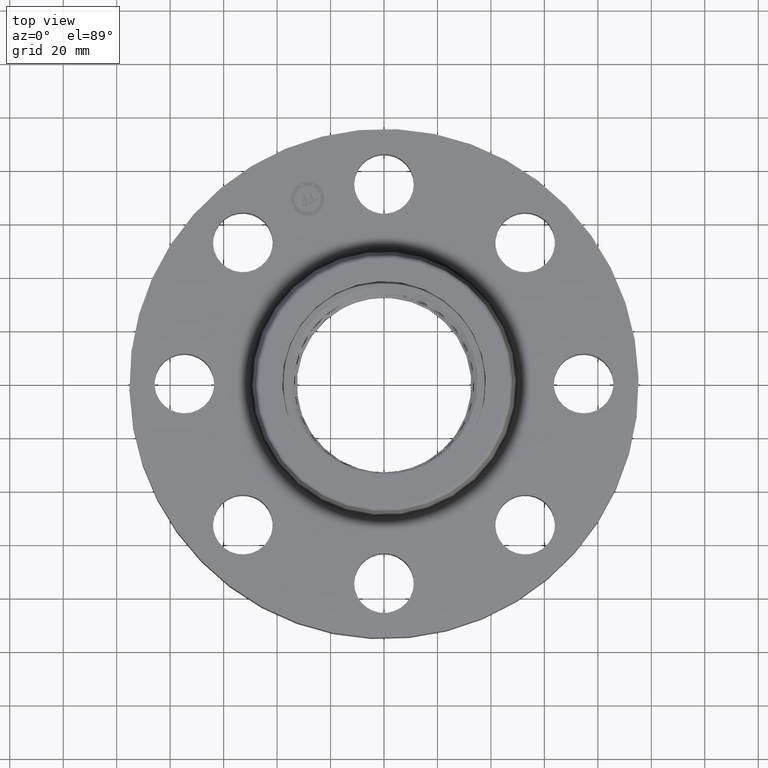
[diagram: clean part render]
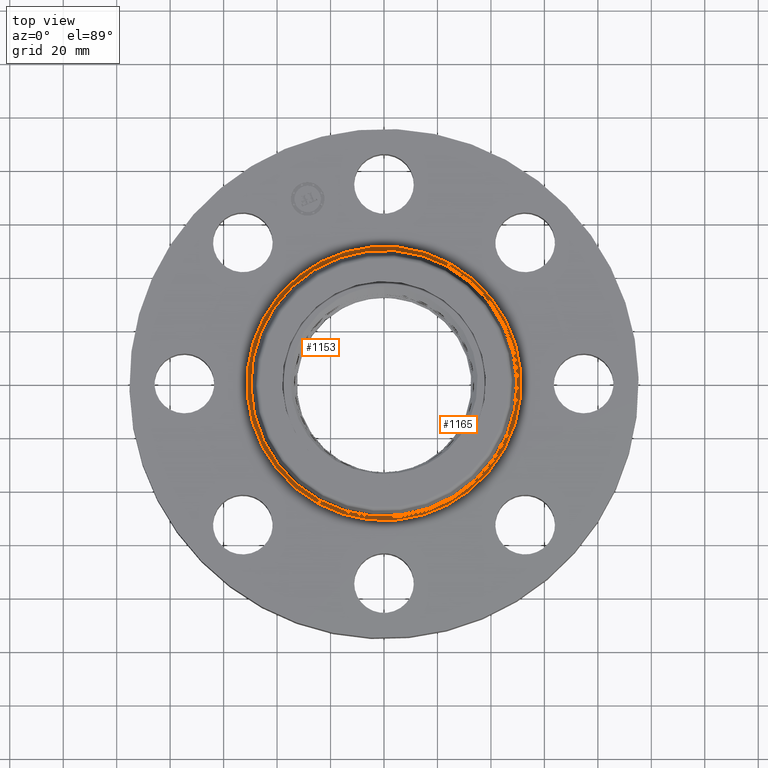
[diagram: same view with one multi-face feature highlighted, each face labeled with its STEP entity id]
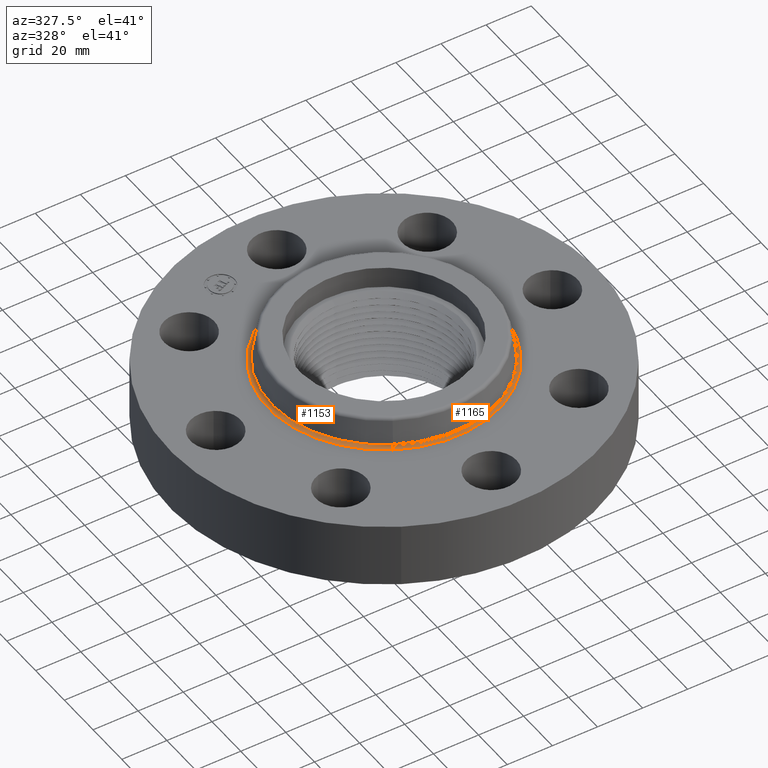
[diagram: same view with one multi-face feature highlighted, each face labeled with its STEP entity id]
A machine part, top view. The highlighted faces form ONE feature: a constant-radius fillet chain: 2 tangent blend faces with common blend radius 1.524 mm. The faces share edges in the B-rep.
A second angle (auxiliary view) of the same feature is appended — it is thin or edge-on in the first view.
Their STEP definitions:
[1] entity #1153 (Torus):
#1087=AXIS2_PLACEMENT_3D('Circle Axis2P3D',#1085,#1086,$) ;
#1126=AXIS2_PLACEMENT_3D('Torus Axis2P3D',#1123,#1124,#1125) ;
#1130=AXIS2_PLACEMENT_3D('Circle Axis2P3D',#1128,#1129,$) ;
#1139=AXIS2_PLACEMENT_3D('Circle Axis2P3D',#1137,#1138,$) ;
#1144=AXIS2_PLACEMENT_3D('Circle Axis2P3D',#1142,#1143,$) ;
#1085=CARTESIAN_POINT('Axis2P3D Location',(0.,0.,1.16958110934)) ;
#1089=CARTESIAN_POINT('Vertex',(-0.940276939367,-1.72116539252,1.16958110934)) ;
#1091=CARTESIAN_POINT('Vertex',(0.940276939367,1.72116539252,1.16958110934)) ;
#1123=CARTESIAN_POINT('Axis2P3D Location',(0.,0.,1.18)) ;
#1128=CARTESIAN_POINT('Axis2P3D Location',(0.,0.,1.12)) ;
#1132=CARTESIAN_POINT('Vertex',(-0.968605458611,-1.77302039917,1.12)) ;
#1134=CARTESIAN_POINT('Vertex',(0.968605458611,1.77302039917,1.12)) ;
#1137=CARTESIAN_POINT('Axis2P3D Location',(-0.968605458611,-1.77302039917,1.18)) ;
#1142=CARTESIAN_POINT('Axis2P3D Location',(0.968605458611,1.77302039917,1.18)) ;
#1086=DIRECTION('Axis2P3D Direction',(0.,0.,-0.0393700787402)) ;
#1124=DIRECTION('Axis2P3D Direction',(0.,0.,-0.0393700787402)) ;
#1125=DIRECTION('Axis2P3D XDirection',(0.0188750212049,0.0345504945626,0.)) ;
#1129=DIRECTION('Axis2P3D Direction',(0.,0.,-0.0393700787402)) ;
#1138=DIRECTION('Axis2P3D Direction',(0.0345504945626,-0.0188750212049,0.)) ;
#1143=DIRECTION('Axis2P3D Direction',(-0.0345504945626,0.0188750212049,0.)) ;
#1148=ORIENTED_EDGE('',*,*,#1136,.F.) ;
#1149=ORIENTED_EDGE('',*,*,#1141,.T.) ;
#1150=ORIENTED_EDGE('',*,*,#1093,.T.) ;
#1151=ORIENTED_EDGE('',*,*,#1146,.F.) ;
#1153=ADVANCED_FACE('PartBody',(#1152),#1127,.F.) ;
#1088=CIRCLE('generated circle',#1087,1.9612575127) ;
#1131=CIRCLE('generated circle',#1130,2.02034597788) ;
#1140=CIRCLE('generated circle',#1139,0.0600000000002) ;
#1145=CIRCLE('generated circle',#1144,0.0600000000002) ;
#1127=TOROIDAL_SURFACE('homeo Torus',#1126,2.02034597788,0.0600000000002) ;
#1093=EDGE_CURVE('',#1090,#1092,#1088,.T.) ;
#1136=EDGE_CURVE('',#1133,#1135,#1131,.T.) ;
#1141=EDGE_CURVE('',#1133,#1090,#1140,.T.) ;
#1146=EDGE_CURVE('',#1135,#1092,#1145,.T.) ;
#1147=EDGE_LOOP('',(#1148,#1149,#1150,#1151)) ;
#1152=FACE_OUTER_BOUND('',#1147,.T.) ;
#1090=VERTEX_POINT('',#1089) ;
#1092=VERTEX_POINT('',#1091) ;
#1133=VERTEX_POINT('',#1132) ;
#1135=VERTEX_POINT('',#1134) ;
[2] entity #1165 (Torus):
#1113=AXIS2_PLACEMENT_3D('Circle Axis2P3D',#1111,#1112,$) ;
#1126=AXIS2_PLACEMENT_3D('Torus Axis2P3D',#1123,#1124,#1125) ;
#1139=AXIS2_PLACEMENT_3D('Circle Axis2P3D',#1137,#1138,$) ;
#1144=AXIS2_PLACEMENT_3D('Circle Axis2P3D',#1142,#1143,$) ;
#1156=AXIS2_PLACEMENT_3D('Circle Axis2P3D',#1154,#1155,$) ;
#1089=CARTESIAN_POINT('Vertex',(-0.940276939367,-1.72116539252,1.16958110934)) ;
#1091=CARTESIAN_POINT('Vertex',(0.940276939367,1.72116539252,1.16958110934)) ;
#1111=CARTESIAN_POINT('Axis2P3D Location',(0.,0.,1.16958110934)) ;
#1123=CARTESIAN_POINT('Axis2P3D Location',(0.,0.,1.18)) ;
#1132=CARTESIAN_POINT('Vertex',(-0.968605458611,-1.77302039917,1.12)) ;
#1134=CARTESIAN_POINT('Vertex',(0.968605458611,1.77302039917,1.12)) ;
#1137=CARTESIAN_POINT('Axis2P3D Location',(-0.968605458611,-1.77302039917,1.18)) ;
#1142=CARTESIAN_POINT('Axis2P3D Location',(0.968605458611,1.77302039917,1.18)) ;
#1154=CARTESIAN_POINT('Axis2P3D Location',(0.,0.,1.12)) ;
#1112=DIRECTION('Axis2P3D Direction',(0.,0.,-0.0393700787402)) ;
#1124=DIRECTION('Axis2P3D Direction',(0.,0.,-0.0393700787402)) ;
#1125=DIRECTION('Axis2P3D XDirection',(0.0188750212049,0.0345504945626,0.)) ;
#1138=DIRECTION('Axis2P3D Direction',(0.0345504945626,-0.0188750212049,0.)) ;
#1143=DIRECTION('Axis2P3D Direction',(-0.0345504945626,0.0188750212049,0.)) ;
#1155=DIRECTION('Axis2P3D Direction',(0.,0.,-0.0393700787402)) ;
#1160=ORIENTED_EDGE('',*,*,#1158,.F.) ;
#1161=ORIENTED_EDGE('',*,*,#1146,.T.) ;
#1162=ORIENTED_EDGE('',*,*,#1115,.T.) ;
#1163=ORIENTED_EDGE('',*,*,#1141,.F.) ;
#1165=ADVANCED_FACE('PartBody',(#1164),#1127,.F.) ;
#1114=CIRCLE('generated circle',#1113,1.9612575127) ;
#1140=CIRCLE('generated circle',#1139,0.0600000000002) ;
#1145=CIRCLE('generated circle',#1144,0.0600000000002) ;
#1157=CIRCLE('generated circle',#1156,2.02034597788) ;
#1127=TOROIDAL_SURFACE('homeo Torus',#1126,2.02034597788,0.0600000000002) ;
#1115=EDGE_CURVE('',#1092,#1090,#1114,.T.) ;
#1141=EDGE_CURVE('',#1133,#1090,#1140,.T.) ;
#1146=EDGE_CURVE('',#1135,#1092,#1145,.T.) ;
#1158=EDGE_CURVE('',#1135,#1133,#1157,.T.) ;
#1159=EDGE_LOOP('',(#1160,#1161,#1162,#1163)) ;
#1164=FACE_OUTER_BOUND('',#1159,.T.) ;
#1090=VERTEX_POINT('',#1089) ;
#1092=VERTEX_POINT('',#1091) ;
#1133=VERTEX_POINT('',#1132) ;
#1135=VERTEX_POINT('',#1134) ;